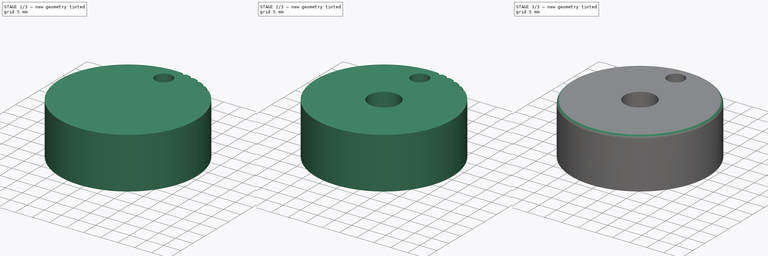
[diagram: build sequence overview — one tinted view per stage of 3, left to right]
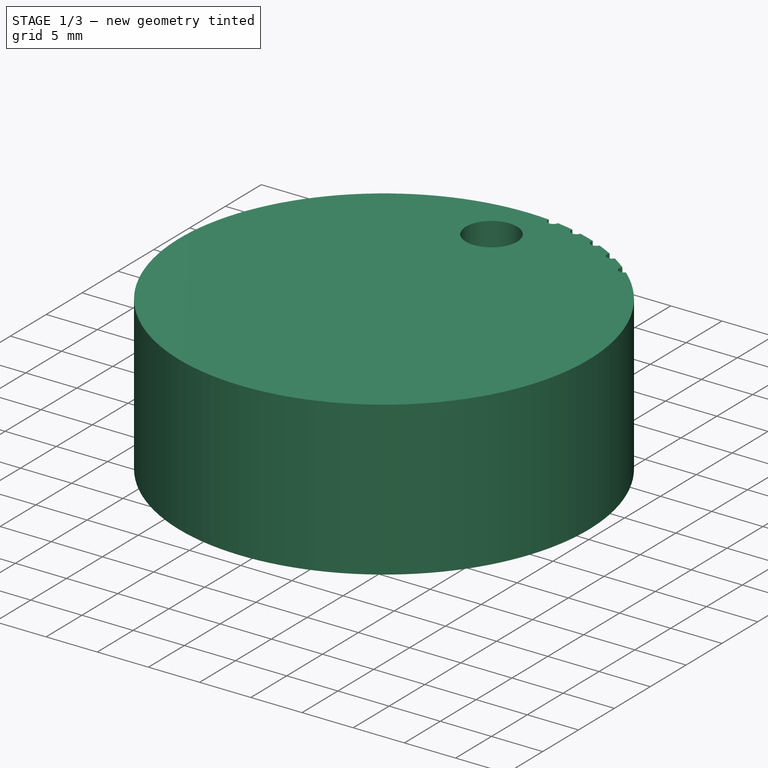
[diagram: stage 1 of 3 — iso view after this stage's code; geometry added in this stage tinted green]
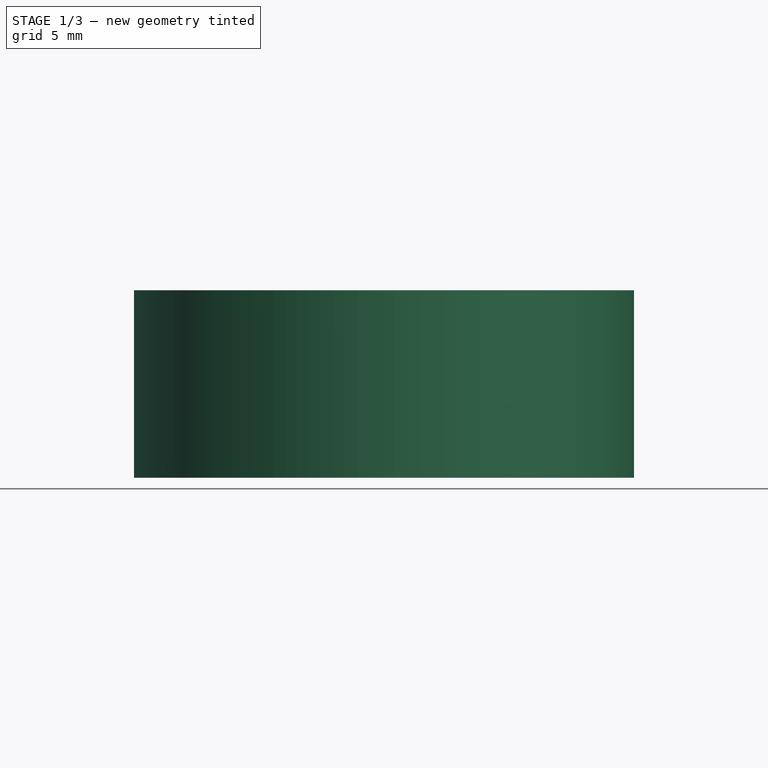
[diagram: stage 1 of 3 — front view after this stage's code; geometry added in this stage tinted green]
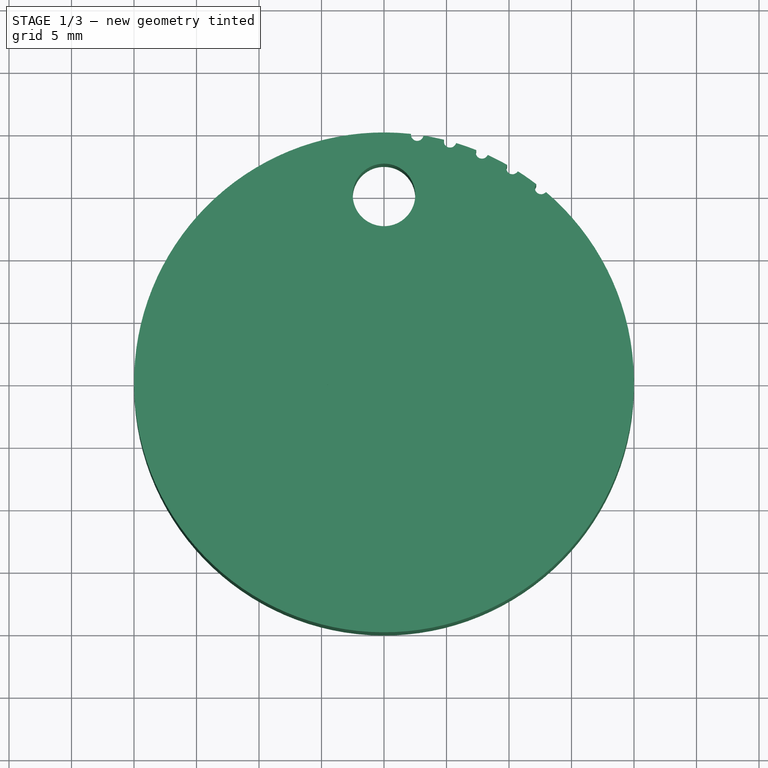
[diagram: stage 1 of 3 — top view after this stage's code; geometry added in this stage tinted green]
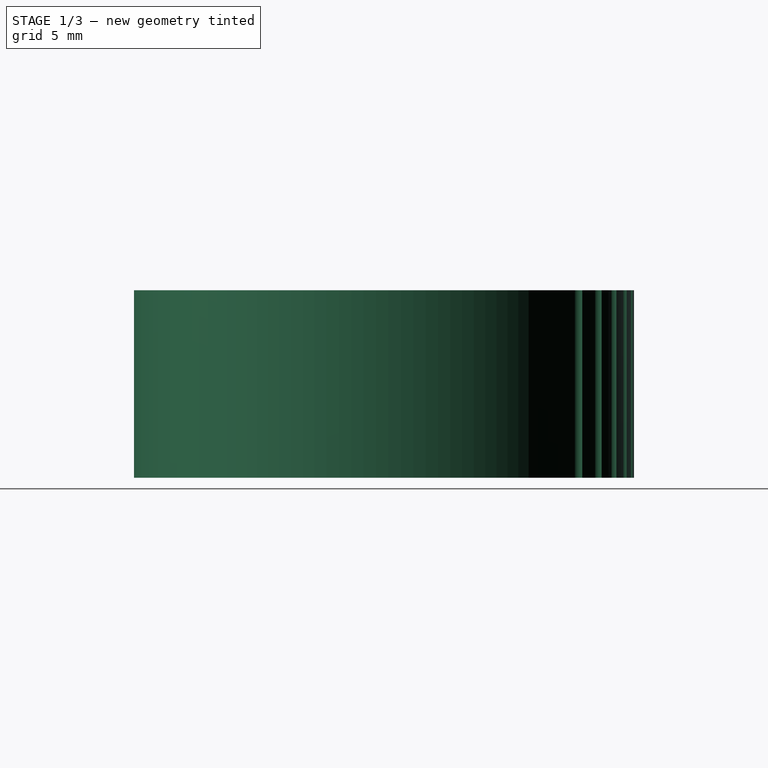
[diagram: stage 1 of 3 — right view after this stage's code; geometry added in this stage tinted green]
FCSTD DOCUMENT  (FreeCAD 0.21R33771 (Git))
Label: cam Wheel
License: Public Domain
LicenseURL: https://en.wikipedia.org/wiki/Public_domain
objects: Sketcher::SketchObject×3, Part::Cut×2, PartDesign::CoordinateSystem×1, Part::Cylinder×1, App::FeaturePython×1, Part::Extrusion×1, PartDesign::Line×1, Part::Sweep×1, App::Part×1
note: 10 computed .brp shape members not serialized (recipe doc carries the construction recipe); baked Part::Feature solids carry a one-line shape summary decoded from their .brp

FEATURE [PartDesign::CoordinateSystem] LCS_Origin  label="Axle AP"
  AttacherType = Attacher::AttachEngine3D
  AttachmentOffset = pos=(0,0,0) rot=(0,0,1;-0.667588rad)
  MapMode = 2
  Placement = pos=(0,0,0) rot=(0,0,1;5.6156rad)
  Support = -> [X_Axis]
FEATURE [Sketcher::SketchObject] Sketch  label="cam wheel profile"
  FullyConstrained = true
  sketch-geometry (23):
    g0: ArcOfCircle CenterX=0 CenterY=0 CenterZ=0 NormalX=0 NormalY=0 NormalZ=1 AngleXU=0 Radius=20 StartAngle=1.46236 EndAngle=7.14931
    g1: Circle CenterX=0 CenterY=15 CenterZ=0 NormalX=0 NormalY=0 NormalZ=1 AngleXU=0 Radius=2.5
    g2: LineSegment StartX=0 StartY=0 StartZ=0 EndX=2.66073 EndY=19.8222 EndZ=0
    g3: LineSegment StartX=0 StartY=0 StartZ=0 EndX=5.28571 EndY=19.2889 EndZ=0
    g4: LineSegment StartX=0 StartY=0 StartZ=0 EndX=7.83837 EndY=18.4 EndZ=0
    g5: Circle CenterX=0 CenterY=0 CenterZ=0 NormalX=0 NormalY=0 NormalZ=1 AngleXU=0 Radius=15
    g6: GeomPoint X=1.99555 Y=14.8667 Z=0
    g7: GeomPoint X=3.96428 Y=14.4667 Z=0
    g8: GeomPoint X=5.87878 Y=13.8 Z=0
    g9: LineSegment StartX=0 StartY=0 StartZ=0 EndX=10.2804 EndY=17.1556 EndZ=0
    g10: LineSegment StartX=0 StartY=0 StartZ=0 EndX=12.5708 EndY=15.5556 EndZ=0
    g11: GeomPoint X=7.71031 Y=12.8667 Z=0
    g12: GeomPoint X=9.42809 Y=11.6667 Z=0
    g13: ArcOfCircle CenterX=2.66073 CenterY=19.8222 CenterZ=0 NormalX=0 NormalY=0 NormalZ=1 AngleXU=0 Radius=0.5 StartAngle=3.02066 EndAngle=6.13725
    g14: ArcOfCircle CenterX=5.28571 CenterY=19.2889 CenterZ=0 NormalX=0 NormalY=0 NormalZ=1 AngleXU=0 Radius=0.5 StartAngle=2.88663 EndAngle=6.00322
    g15: ArcOfCircle CenterX=7.83837 CenterY=18.4 CenterZ=0 NormalX=0 NormalY=0 NormalZ=1 AngleXU=0 Radius=0.5 StartAngle=2.75138 EndAngle=5.86797
    g16: ArcOfCircle CenterX=10.2804 CenterY=17.1556 CenterZ=0 NormalX=0 NormalY=0 NormalZ=1 AngleXU=0 Radius=0.5 StartAngle=2.61423 EndAngle=5.73082
    g17: ArcOfCircle CenterX=12.5708 CenterY=15.5556 CenterZ=0 NormalX=0 NormalY=0 NormalZ=1 AngleXU=0 Radius=0.5 StartAngle=2.47442 EndAngle=5.59101
    g18: Circle CenterX=0 CenterY=0 CenterZ=0 NormalX=0 NormalY=0 NormalZ=1 AngleXU=0 Radius=2.5
    g19: ArcOfCircle CenterX=0 CenterY=0 CenterZ=0 NormalX=0 NormalY=0 NormalZ=1 AngleXU=0 Radius=20 StartAngle=1.32833 EndAngle=1.41236
    g20: ArcOfCircle CenterX=0 CenterY=0 CenterZ=0 NormalX=0 NormalY=0 NormalZ=1 AngleXU=0 Radius=20 StartAngle=1.19308 EndAngle=1.27833
    g21: ArcOfCircle CenterX=0 CenterY=0 CenterZ=0 NormalX=0 NormalY=0 NormalZ=1 AngleXU=0 Radius=20 StartAngle=1.05593 EndAngle=1.14308
    g22: ArcOfCircle CenterX=0 CenterY=0 CenterZ=0 NormalX=0 NormalY=0 NormalZ=1 AngleXU=0 Radius=20 StartAngle=0.916123 EndAngle=1.00593
  constraints (62):
    c: Coincident(g0,g-1)
    c: Radius(g0) = 20  'CamWheelRadius'
    c: PointOnObject(g1,g-2)
    c: Radius(g1) = 2.5
    c: Coincident(g2,g0)
    c: Coincident(g3,g0)
    c: Coincident(g4,g0)
    c: Coincident(g5,g0)
    c: PointOnObject(g1,g5)
    c: Radius(g5) = 15
    c: PointOnObject(g6,g5)
    c: PointOnObject(g7,g3)
    c: PointOnObject(g8,g4)
    c: PointOnObject(g6,g2)
    c: PointOnObject(g7,g5)
    c: PointOnObject(g8,g5)
    c: Distance(g7,g1) = 4
    c: Distance(g8,g1) = 6
    c: Distance(g6,g1) = 2
    c: Coincident(g9,g0)
    c: Coincident(g10,g0)
    c: PointOnObject(g11,g5)
    c: PointOnObject(g12,g10)
    c: PointOnObject(g11,g9)
    c: PointOnObject(g12,g5)
    c: Distance(g11,g1) = 8
    c: Distance(g12,g1) = 10
    c: Coincident(g13,g2)
    c: Coincident(g14,g3)
    c: Coincident(g15,g4)
    c: Coincident(g16,g9)
    c: Coincident(g17,g10)
    c: Equal(g17,g16)
    c: Equal(g16,g15)
    c: Equal(g15,g14)
    c: Equal(g14,g13)
    c: Radius(g17) = 0.5
    c: Coincident(g18,g0)
    c: Radius(g18) = 2.5
    c: Coincident(g0,g13)
    c: Coincident(g19,g13)
    c: Equal(g0,g19)
    c: Coincident(g19,g14)
    c: Coincident(g0,g19)
    c: Coincident(g20,g14)
    c: Equal(g0,g20)
    c: Coincident(g20,g15)
    c: Coincident(g0,g20)
    c: Coincident(g21,g15)
    c: Equal(g0,g21)
    c: Coincident(g21,g16)
    c: Coincident(g0,g21)
    c: Coincident(g22,g16)
    c: Equal(g0,g22)
    c: Coincident(g22,g17)
    c: Coincident(g0,g22)
    c: Coincident(g0,g17)
    c: PointOnObject(g13,g19)
    c: PointOnObject(g14,g19)
    c: PointOnObject(g15,g20)
    c: PointOnObject(g16,g21)
    c: PointOnObject(g17,g22)
FEATURE [Part::Cylinder] Cylinder  label="Bolt Head"
  Angle = 360
  AttacherType = Attacher::AttachEngine3D
  FirstAngle = 0
  Height = 6
  Placement = pos=(0,0,9) rot=(0,0,1;0rad)
  Radius = 4.5
  SecondAngle = 0
FEATURE [App::FeaturePython] Variables  # WARN: FeaturePython — macro-defined, semantics opaque (R4)
  Height = 15
  Radius = 15
  Type = App::PropertyContainer
FEATURE [Part::Extrusion] Extrude
  Base = -> Sketch
  Dir = (0,0,1)
  DirMode = 2
  FaceMakerClass = Part::FaceMakerBullseye
  LengthFwd = 15
  LengthRev = 0
  Solid = true
  Symmetric = false
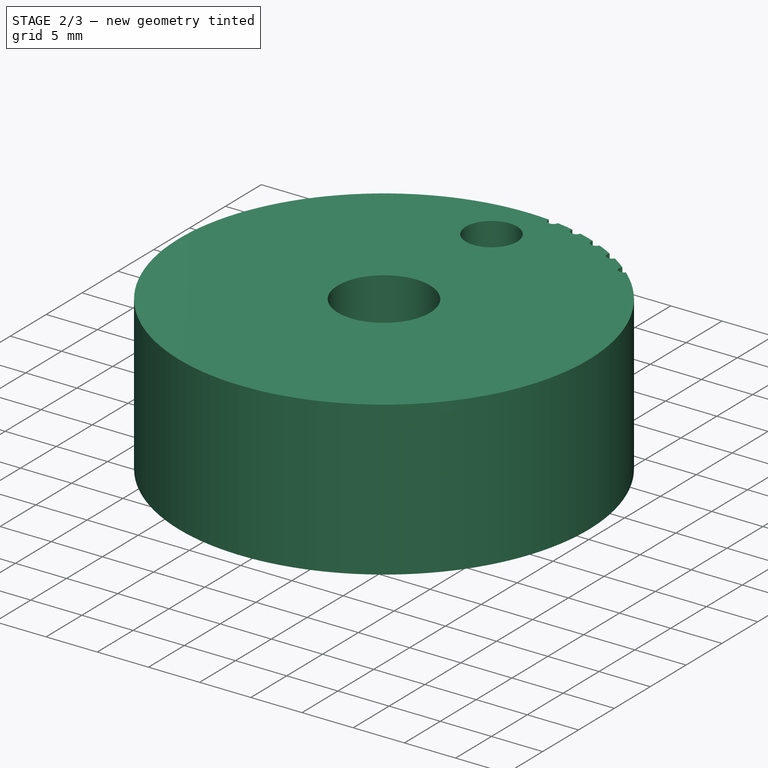
[diagram: stage 2 of 3 — iso view after this stage's code; geometry added in this stage tinted green]
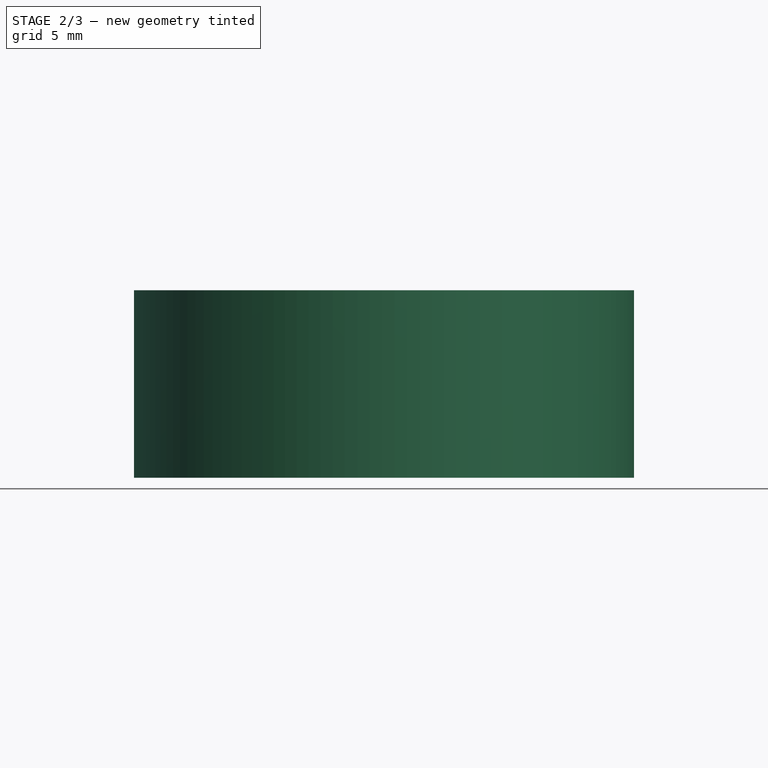
[diagram: stage 2 of 3 — front view after this stage's code; geometry added in this stage tinted green]
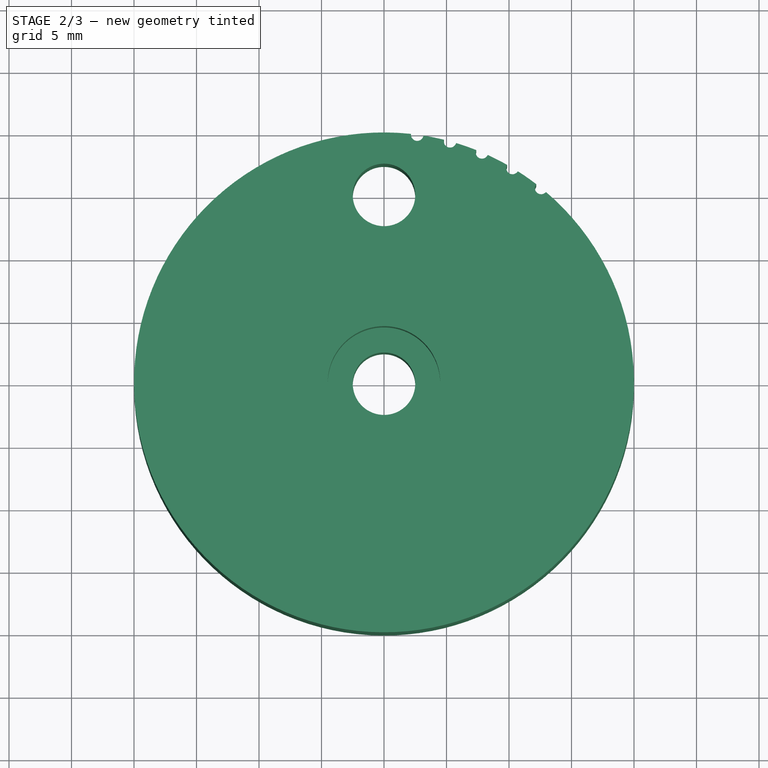
[diagram: stage 2 of 3 — top view after this stage's code; geometry added in this stage tinted green]
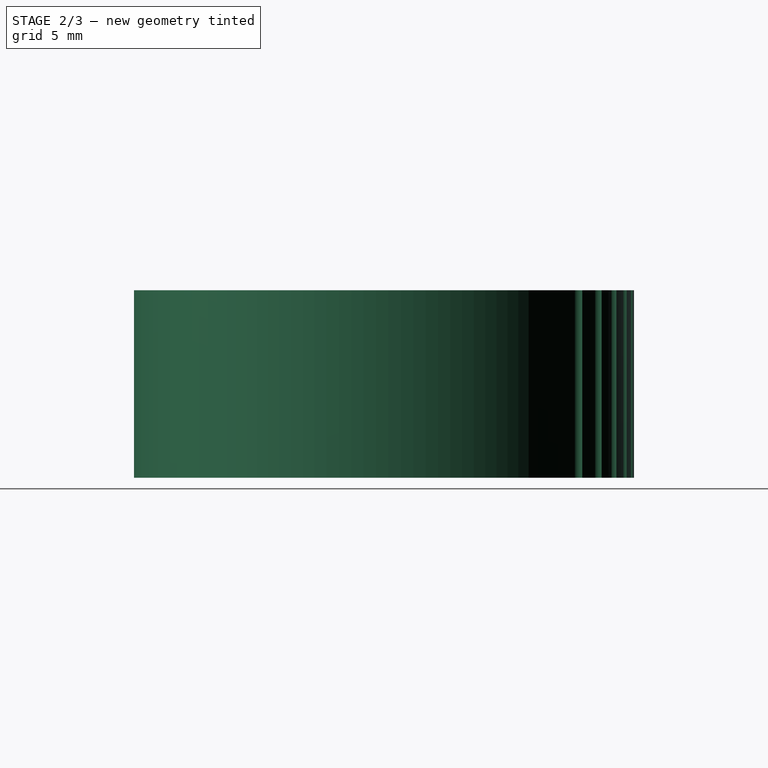
[diagram: stage 2 of 3 — right view after this stage's code; geometry added in this stage tinted green]
FEATURE [Part::Cut] Cut  label="Cam Wheel Base"
  Base = -> Extrude
  Tool = -> Cylinder
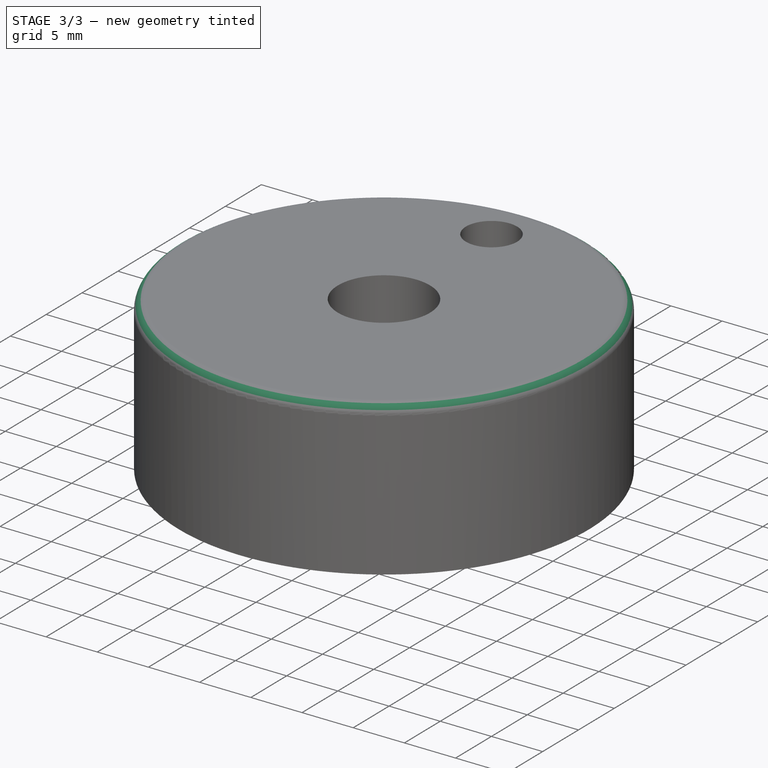
[diagram: stage 3 of 3 — iso view after this stage's code; geometry added in this stage tinted green]
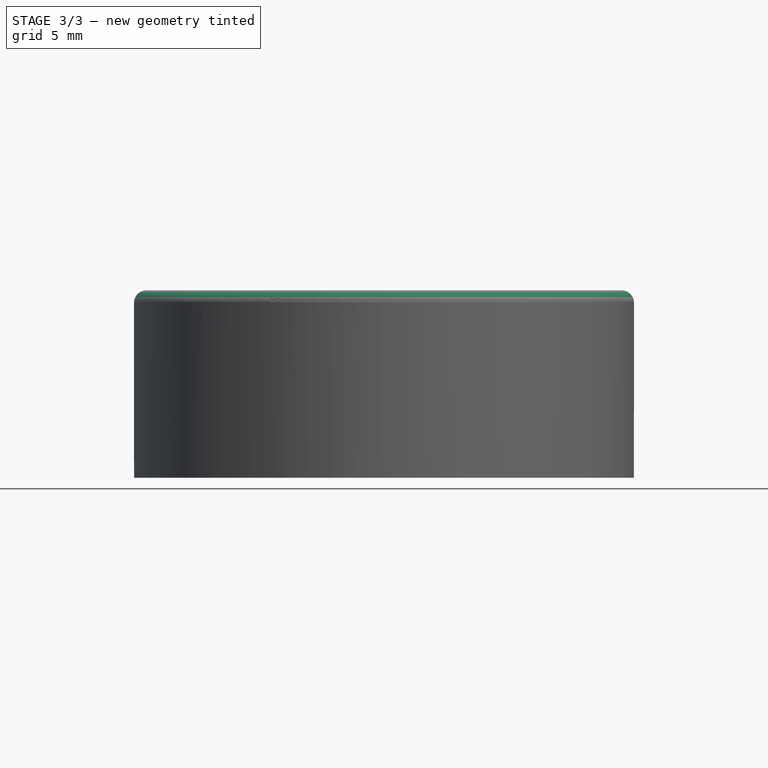
[diagram: stage 3 of 3 — front view after this stage's code; geometry added in this stage tinted green]
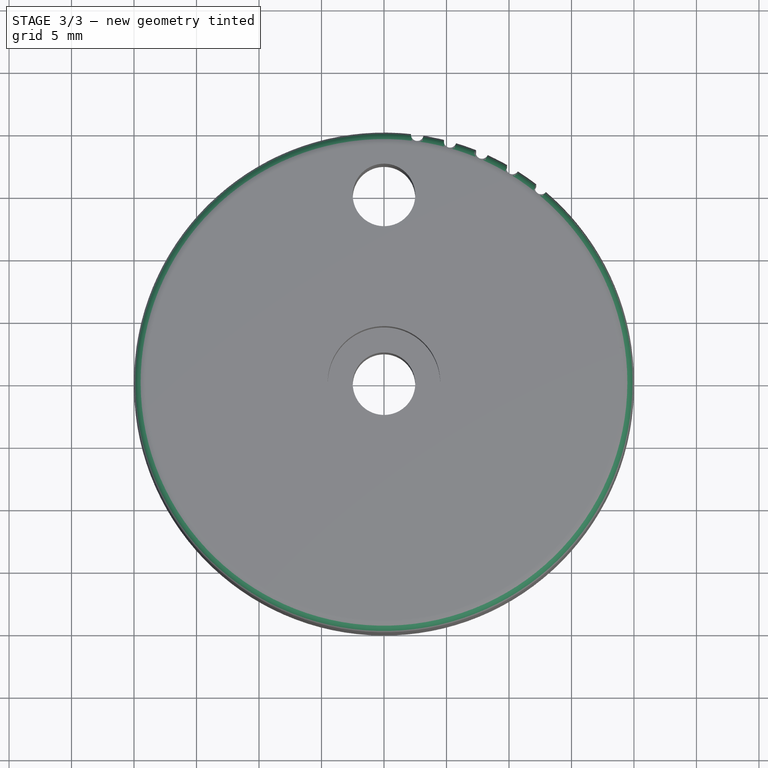
[diagram: stage 3 of 3 — top view after this stage's code; geometry added in this stage tinted green]
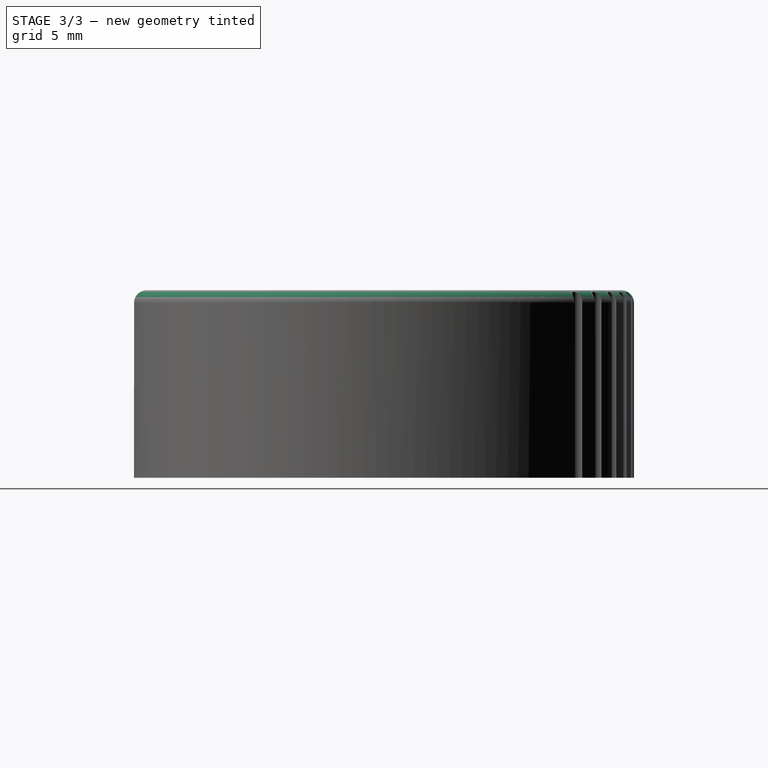
[diagram: stage 3 of 3 — right view after this stage's code; geometry added in this stage tinted green]
FEATURE [PartDesign::Line] HoleAxis_1  label="Cam Pin AP"
  AttacherType = Attacher::AttachEngineLine
  AttachmentOffset = pos=(0,0,-15) rot=(0,0,1;0rad)
  Length = 7.04534
  MapMode = 19
  Placement = pos=(0,15,0) rot=(0,0,1;0rad)
  ResizeMode = 1
  Support = -> [Cut]
  expr: .AttachmentOffset.Base.z = 0 - Variables.Height
FEATURE [Sketcher::SketchObject] Sketch002  label="fillet path"
  FullyConstrained = true
  MapMode = 5
  Placement = pos=(0,0,15) rot=(0,0,1;0rad)
  Support = -> [Cut]
  expr: Constraints[1] = <<cam wheel profile>>.Constraints.CamWheelRadius
  sketch-geometry (1):
    g0: Circle CenterX=0 CenterY=0 CenterZ=0 NormalX=0 NormalY=0 NormalZ=1 AngleXU=0 Radius=20
  constraints (2):
    c: Coincident(g0,g-1)
    c: Radius(g0) = 20
FEATURE [Sketcher::SketchObject] Sketch001  label="fillet profile"
  FullyConstrained = true
  MapMode = 7
  Placement = pos=(20,0,15) rot=(1,0,0;1.5708rad)
  Support = -> [Sketch002]
  sketch-geometry (5):
    g0: ArcOfCircle CenterX=-1 CenterY=-1 CenterZ=0 NormalX=0 NormalY=0 NormalZ=1 AngleXU=0 Radius=1 StartAngle=0 EndAngle=1.5708
    g1: LineSegment StartX=-1 StartY=0 StartZ=0 EndX=-1 EndY=1 EndZ=0
    g2: LineSegment StartX=-1 StartY=1 StartZ=0 EndX=1 EndY=1 EndZ=0
    g3: LineSegment StartX=1 StartY=1 StartZ=0 EndX=1 EndY=-1 EndZ=0
    g4: LineSegment StartX=1 StartY=-1 StartZ=0 EndX=0 EndY=-1 EndZ=0
  constraints (15):
    c: Tangent(g0,g-2) = -1.5708
    c: Coincident(g1,g2)
    c: Coincident(g2,g3)
    c: Coincident(g3,g4)
    c: Coincident(g4,g0)
    c: Vertical(g3)
    c: Horizontal(g2)
    c: Equal(g3,g2)
    c: Horizontal(g4)
    c: Equal(g1,g4)
    c: Radius(g0) = 1
    c: DistanceX(g4,g4) = 1
    c: Coincident(g1,g0)
    c: Vertical(g1)
    c: PointOnObject(g0,g-1)
FEATURE [Part::Sweep] Sweep
  Frenet = false
  Sections = -> [Sketch001]
  Solid = true
  Spine = -> Sketch002 [Edge1]
  Transition = 1
FEATURE [Part::Cut] Cut001  label="Cam Wheel Finished"
  Base = -> Cut
  Tool = -> Sweep
FEATURE [App::Part] Cam_Wheel  label="Cam Wheel"
  Group = -> [LCS_Origin,Variables,Cylinder,HoleAxis_1,Sketch,Cut,Sketch002,Sweep,Extrude,Sketch001,Cut001]
  Origin = -> Origin
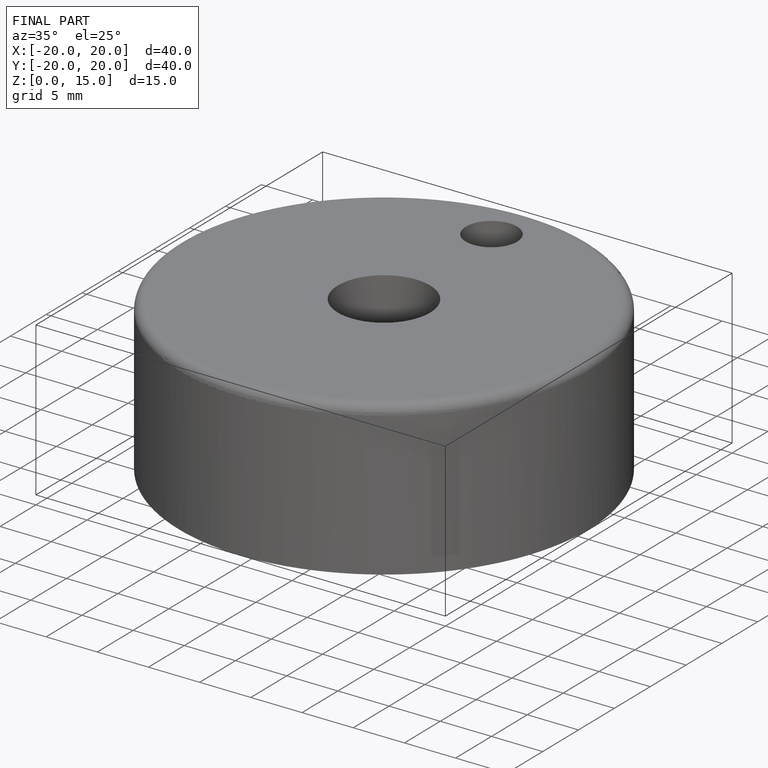
[diagram: finished part — iso view with bounding-box wireframe]
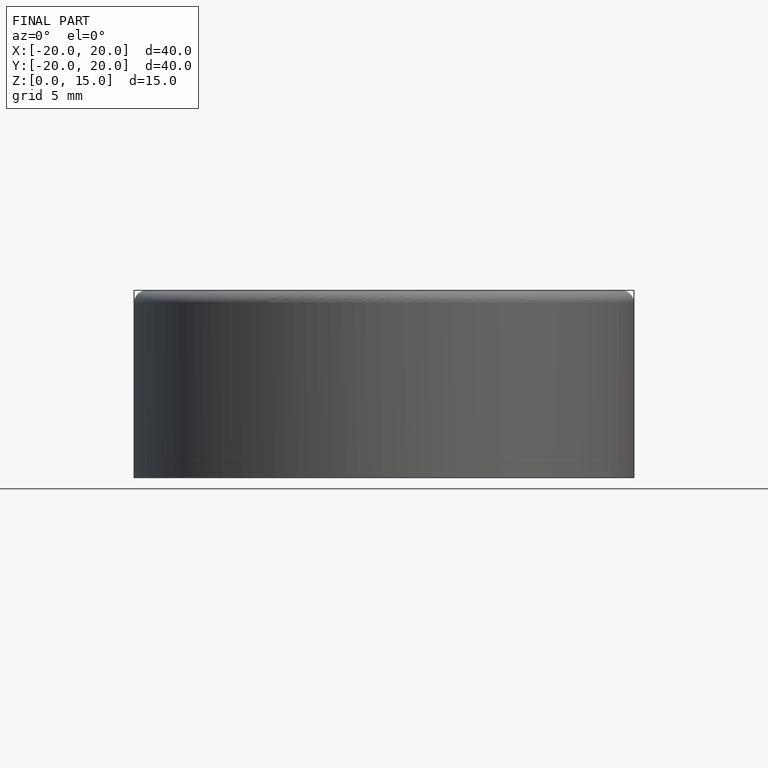
[diagram: finished part — front view with bounding-box wireframe]
